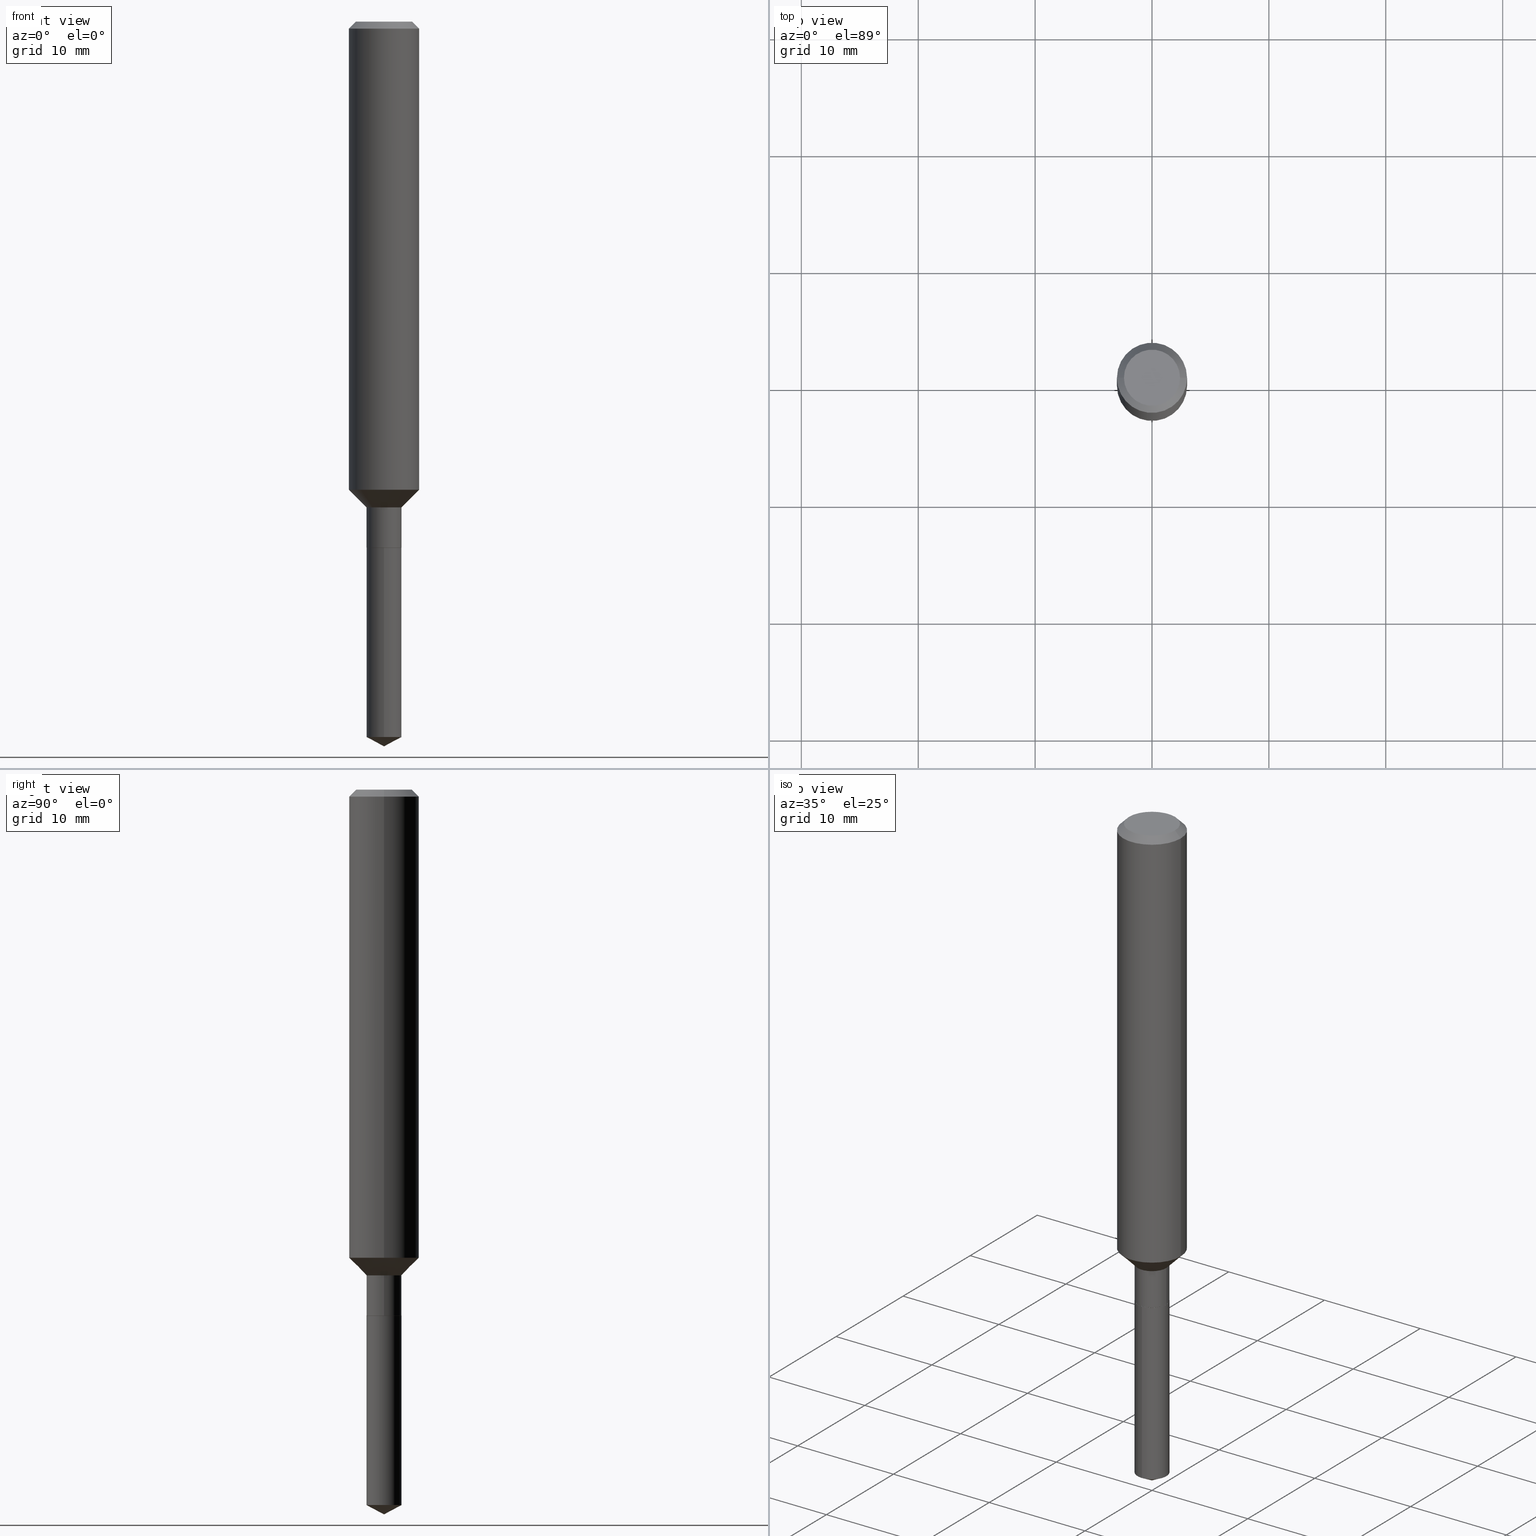
[diagram: canonical four-view strip — front | top / right | iso, engineering-drawing reading convention]
A machine part, canonical four-view strip (front | top / right | iso — engineering-drawing reading convention). The complete STEP part file that produces these views, byte-faithful:
ISO-10303-21;
HEADER;
FILE_DESCRIPTION (( 'STEP AP203' ),
    '1' );
FILE_NAME ('64600.STEP',
    '2024-04-24T18:22:38',
    ( '' ),
    ( '' ),
    'SwSTEP 2.0',
    'SolidWorks 2023',
    '' );
FILE_SCHEMA (( 'CONFIG_CONTROL_DESIGN' ));
ENDSEC;

DATA;
#1 = DIRECTION ( 'NONE',  ( -2.445468806185136597E-29, 3.491481338843145583E-15, 1.000000000000000000 ) ) ;
#2 = DATE_AND_TIME ( #280, #351 ) ;
#3 = DIRECTION ( 'NONE',  ( -2.410626900522587161E-29, 3.541376930830032473E-15, 1.000000000000000000 ) ) ;
#4 = AXIS2_PLACEMENT_3D ( 'NONE', #229, #161, #310 ) ;
#5 = VERTEX_POINT ( 'NONE', #363 ) ;
#6 = CARTESIAN_POINT ( 'NONE',  ( 6.008633568543982876E-29, -8.467356888935088427E-15, -2.440899999999999626 ) ) ;
#7 = DIRECTION ( 'NONE',  ( -6.982962677686265922E-15, -1.000000000000000000, 4.626330217890367758E-15 ) ) ;
#8 = CONICAL_SURFACE ( 'NONE', #75, 0.05854999999999998400, 0.7853981633973801113 ) ;
#9 = CONICAL_SURFACE ( 'NONE', #426, 0.05904999999999981097, 0.7853981633974491672 ) ;
#10 = EDGE_CURVE ( 'NONE', #445, #430, #357, .T. ) ;
#11 = ORIENTED_EDGE ( 'NONE', *, *, #338, .F. ) ;
#12 = CC_DESIGN_PERSON_AND_ORGANIZATION_ASSIGNMENT ( #291, #288, ( #19 ) ) ;
#13 = DIRECTION ( 'NONE',  ( -2.445468806185136597E-29, 3.491481338843145583E-15, 1.000000000000000000 ) ) ;
#14 = ORIENTED_EDGE ( 'NONE', *, *, #278, .T. ) ;
#15 = LINE ( 'NONE', #200, #264 ) ;
#16 =( CONVERSION_BASED_UNIT ( 'INCH', #393 ) LENGTH_UNIT ( ) NAMED_UNIT ( #344 ) );
#17 = VECTOR ( 'NONE', #374, 39.37007874015748143 ) ;
#18 = MANIFOLD_SOLID_BREP ( 'Body-Move/Copy2[2]', #454 ) ;
#19 = PRODUCT_DEFINITION_FORMATION_WITH_SPECIFIED_SOURCE ( 'ANY', '', #129, .NOT_KNOWN. ) ;
#20 = CARTESIAN_POINT ( 'NONE',  ( 4.332392537037588763E-29, -6.185508339894517569E-15, -1.771600000000000286 ) ) ;
#21 = EDGE_CURVE ( 'NONE', #154, #414, #480, .T. ) ;
#22 = ORIENTED_EDGE ( 'NONE', *, *, #146, .F. ) ;
#23 = APPLICATION_PROTOCOL_DEFINITION ( 'international standard', 'config_control_design', 1994, #47 ) ;
#24 = ORIENTED_EDGE ( 'NONE', *, *, #222, .T. ) ;
#25 = MANIFOLD_SOLID_BREP ( 'Body-Move/Copy2[1]', #93 ) ;
#26 = DIRECTION ( 'NONE',  ( -2.410626900522587161E-29, 3.541376930830032473E-15, 1.000000000000000000 ) ) ;
#27 = CYLINDRICAL_SURFACE ( 'NONE', #323, 0.05905000000000003302 ) ;
#28 = CIRCLE ( 'NONE', #290, 0.05905000000000001914 ) ;
#29 = DIRECTION ( 'NONE',  ( 2.438088387897960049E-29, -3.491481338843145188E-15, -1.000000000000000000 ) ) ;
#30 = ORIENTED_EDGE ( 'NONE', *, *, #136, .F. ) ;
#31 = APPROVAL ( #126, 'UNSPECIFIED' ) ;
#32 = DIRECTION ( 'NONE',  ( 1.000000000000000000, -6.982962677686267499E-15, 4.875432709231658792E-29 ) ) ;
#33 = ORIENTED_EDGE ( 'NONE', *, *, #195, .F. ) ;
#34 = CARTESIAN_POINT ( 'NONE',  ( 0.000000000000000000, 0.000000000000000000, 0.000000000000000000 ) ) ;
#35 = CARTESIAN_POINT ( 'NONE',  ( 4.331169802634495962E-29, -6.183762599225096855E-15, -1.771100000000000341 ) ) ;
#36 = CYLINDRICAL_SURFACE ( 'NONE', #131, 0.05904999999999981097 ) ;
#37 = VECTOR ( 'NONE', #157, 39.37007874015748143 ) ;
#38 = CC_DESIGN_APPROVAL ( #31, ( #113 ) ) ;
#39 = APPROVAL ( #286, 'UNSPECIFIED' ) ;
#40 = ORIENTED_EDGE ( 'NONE', *, *, #181, .F. ) ;
#41 = CARTESIAN_POINT ( 'NONE',  ( -8.896074576515866659E-28, 1.308685366956565604E-13, 36.92917874015748225 ) ) ;
#42 = LINE ( 'NONE', #244, #60 ) ;
#43 = APPROVAL_ROLE ( '' ) ;
#44 = EDGE_LOOP ( 'NONE', ( #201, #182, #63, #192 ) ) ;
#45 = AXIS2_PLACEMENT_3D ( 'NONE', #68, #299, #458 ) ;
#46 = CONICAL_SURFACE ( 'NONE', #110, 0.1180999999999999966, 0.7853981633974461696 ) ;
#47 = APPLICATION_CONTEXT ( 'configuration controlled 3d designs of mechanical parts and assemblies' ) ;
#48 = CARTESIAN_POINT ( 'NONE',  ( -0.05904999999999981097, 4.195754854663378166E-16, -2.904631170795512433E-30 ) ) ;
#49 = ADVANCED_FACE ( 'NONE', ( #285 ), #140, .F. ) ;
#50 = PRODUCT_DEFINITION_SHAPE ( 'NONE', 'NONE',  #113 ) ;
#51 = DIRECTION ( 'NONE',  ( -6.982962677686265133E-15, -1.000000000000000000, 4.626330217890365392E-15 ) ) ;
#52 = AXIS2_PLACEMENT_3D ( 'NONE', #226, #300, #120 ) ;
#53 = VERTEX_POINT ( 'NONE', #366 ) ;
#54 = DIRECTION ( 'NONE',  ( 1.000000000000000000, -6.982962677686261977E-15, 0.000000000000000000 ) ) ;
#55 = EDGE_LOOP ( 'NONE', ( #269, #167, #279, #111 ) ) ;
#56 = CARTESIAN_POINT ( 'NONE',  ( 0.05854999999999998400, -6.594360804673047905E-15, -1.771600000000000286 ) ) ;
#57 = DIRECTION ( 'NONE',  ( 1.000000000000000000, 0.000000000000000000, 0.000000000000000000 ) ) ;
#58 = DIRECTION ( 'NONE',  ( -6.982962677686265922E-15, -1.000000000000000000, 3.541896320645589268E-15 ) ) ;
#59 = CC_DESIGN_PERSON_AND_ORGANIZATION_ASSIGNMENT ( #411, #71, ( #247 ) ) ;
#60 = VECTOR ( 'NONE', #134, 39.37007874015748143 ) ;
#61 =( NAMED_UNIT ( * ) SI_UNIT ( $, .STERADIAN. ) SOLID_ANGLE_UNIT ( ) );
#62 = MECHANICAL_CONTEXT ( 'NONE', #47, 'mechanical' ) ;
#63 = ORIENTED_EDGE ( 'NONE', *, *, #338, .T. ) ;
#64 = CC_DESIGN_DATE_AND_TIME_ASSIGNMENT ( #242, #328, ( #113 ) ) ;
#65 = EDGE_LOOP ( 'NONE', ( #94, #303, #463, #88 ) ) ;
#66 = CARTESIAN_POINT ( 'NONE',  ( 0.000000000000000000, 0.000000000000000000, 0.000000000000000000 ) ) ;
#67 = DIRECTION ( 'NONE',  ( -2.445468806185136877E-29, 3.491481338843145188E-15, 1.000000000000000000 ) ) ;
#68 = CARTESIAN_POINT ( 'NONE',  ( 5.870137603410133772E-29, -8.444561743127043625E-15, -2.409502558060389266 ) ) ;
#69 = DATE_TIME_ROLE ( 'classification_date' ) ;
#70 = VERTEX_POINT ( 'NONE', #135 ) ;
#71 = PERSON_AND_ORGANIZATION_ROLE ( 'classification_officer' ) ;
#72 = CARTESIAN_POINT ( 'NONE',  ( 4.332392537037588763E-29, -6.185508339894517569E-15, -1.771600000000000286 ) ) ;
#73 = EDGE_LOOP ( 'NONE', ( #311, #329, #334, #315 ) ) ;
#74 = CARTESIAN_POINT ( 'NONE',  ( 4.332392537037588763E-29, -6.185508339894517569E-15, -1.771600000000000286 ) ) ;
#75 = AXIS2_PLACEMENT_3D ( 'NONE', #20, #272, #395 ) ;
#76 = CIRCLE ( 'NONE', #394, 0.1180999999999999966 ) ;
#77 = DATE_AND_TIME ( #368, #102 ) ;
#78 = EDGE_LOOP ( 'NONE', ( #321, #473, #252, #22 ) ) ;
#79 = AXIS2_PLACEMENT_3D ( 'NONE', #397, #26, #58 ) ;
#80 = PLANE ( 'NONE',  #158 ) ;
#81 = FACE_OUTER_BOUND ( 'NONE', #121, .T. ) ;
#82 = ADVANCED_FACE ( 'NONE', ( #399 ), #27, .T. ) ;
#83 = EDGE_LOOP ( 'NONE', ( #104, #142, #428, #153 ) ) ;
#84 = DIRECTION ( 'NONE',  ( 1.000000000000000000, -6.982962677686261977E-15, 0.000000000000000000 ) ) ;
#85 = LOCAL_TIME ( 14, 22, 38.00000000000000000, #137 ) ;
#86 = DIRECTION ( 'NONE',  ( 1.000000000000000000, -6.982962677686261977E-15, 0.000000000000000000 ) ) ;
#87 = PERSON_AND_ORGANIZATION_ROLE ( 'design_owner' ) ;
#88 = ORIENTED_EDGE ( 'NONE', *, *, #432, .F. ) ;
#89 = DIRECTION ( 'NONE',  ( -2.445468806185136597E-29, 3.491481338843145583E-15, 1.000000000000000000 ) ) ;
#90 = COORDINATED_UNIVERSAL_TIME_OFFSET ( 5, 0, .BEHIND. ) ;
#91 = CARTESIAN_POINT ( 'NONE',  ( 3.855892940152412927E-29, -5.505193201020928046E-15, -1.576749999999999430 ) ) ;
#92 = ORIENTED_EDGE ( 'NONE', *, *, #370, .F. ) ;
#93 = CLOSED_SHELL ( 'NONE', ( #82, #163, #402, #193, #49 ) ) ;
#94 = ORIENTED_EDGE ( 'NONE', *, *, #195, .T. ) ;
#95 = CC_DESIGN_SECURITY_CLASSIFICATION ( #247, ( #19 ) ) ;
#96 = DIRECTION ( 'NONE',  ( -2.445468806185136597E-29, 3.491481338843145583E-15, 1.000000000000000000 ) ) ;
#97 = DIRECTION ( 'NONE',  ( -0.7071067811865481278, 7.493145998870357316E-15, 0.7071067811865469066 ) ) ;
#98 = CARTESIAN_POINT ( 'NONE',  ( 4.195754854663826338E-16, 0.05904999999999384352, -1.771600000000000508 ) ) ;
#99 = DIRECTION ( 'NONE',  ( -2.445468806185136597E-29, 3.491481338843145583E-15, 1.000000000000000000 ) ) ;
#100 = DIRECTION ( 'NONE',  ( -2.445468806185136597E-29, 3.491481338843145583E-15, 1.000000000000000000 ) ) ;
#101 = VECTOR ( 'NONE', #380, 39.37007874015748143 ) ;
#102 = LOCAL_TIME ( 14, 22, 38.00000000000000000, #446 ) ;
#103 = CARTESIAN_POINT ( 'NONE',  ( 4.000297873157646549E-29, -5.711365174079616690E-15, -1.635799999999999699 ) ) ;
#104 = ORIENTED_EDGE ( 'NONE', *, *, #444, .T. ) ;
#105 = ADVANCED_FACE ( 'NONE', ( #132 ), #276, .T. ) ;
#106 = ORIENTED_EDGE ( 'NONE', *, *, #432, .T. ) ;
#107 = DIRECTION ( 'NONE',  ( -0.7071067811864992780, 7.493145998870180611E-15, 0.7071067811865957564 ) ) ;
#108 = EDGE_CURVE ( 'NONE', #70, #150, #457, .T. ) ;
#109 = ADVANCED_BREP_SHAPE_REPRESENTATION ( '64600', ( #25, #18, #117 ), #257 ) ;
#110 = AXIS2_PLACEMENT_3D ( 'NONE', #355, #240, #191 ) ;
#111 = ORIENTED_EDGE ( 'NONE', *, *, #316, .F. ) ;
#112 = DIRECTION ( 'NONE',  ( -2.445468806185136877E-29, 3.491481338843145188E-15, 1.000000000000000000 ) ) ;
#113 = PRODUCT_DEFINITION ( 'UNKNOWN', '', #19, #292 ) ;
#114 = DIRECTION ( 'NONE',  ( -2.445468806185136597E-29, 3.491481338843145583E-15, 1.000000000000000000 ) ) ;
#115 = LINE ( 'NONE', #6, #245 ) ;
#116 = LINE ( 'NONE', #302, #101 ) ;
#117 = AXIS2_PLACEMENT_3D ( 'NONE', #386, #354, #57 ) ;
#118 = EDGE_CURVE ( 'NONE', #233, #439, #116, .T. ) ;
#119 = CARTESIAN_POINT ( 'NONE',  ( -4.123439461173309412E-16, -0.05905000000000622251, -1.771600000000000064 ) ) ;
#120 = DIRECTION ( 'NONE',  ( -1.000000000000000000, 6.982962677686266711E-15, 0.000000000000000000 ) ) ;
#121 = EDGE_LOOP ( 'NONE', ( #170, #260, #24, #235 ) ) ;
#122 = ADVANCED_FACE ( 'NONE', ( #421 ), #295, .T. ) ;
#123 = CARTESIAN_POINT ( 'NONE',  ( 5.776197320209327532E-31, -8.246878922347559293E-17, -0.02362000000000014088 ) ) ;
#124 = CC_DESIGN_APPROVAL ( #39, ( #19 ) ) ;
#125 = CARTESIAN_POINT ( 'NONE',  ( 0.1181000000000002048, -6.329881093255677887E-15, -1.576749999999999430 ) ) ;
#126 = APPROVAL_STATUS ( 'not_yet_approved' ) ;
#127 = EDGE_CURVE ( 'NONE', #70, #53, #398, .T. ) ;
#128 = ORIENTED_EDGE ( 'NONE', *, *, #227, .F. ) ;
#129 = PRODUCT ( '64600', '64600', '', ( #62 ) ) ;
#130 = ORIENTED_EDGE ( 'NONE', *, *, #316, .T. ) ;
#131 = AXIS2_PLACEMENT_3D ( 'NONE', #34, #1, #173 ) ;
#132 = FACE_OUTER_BOUND ( 'NONE', #73, .T. ) ;
#133 = FACE_OUTER_BOUND ( 'NONE', #282, .T. ) ;
#134 = DIRECTION ( 'NONE',  ( -2.445468806185136877E-29, 3.491481338843145188E-15, 1.000000000000000000 ) ) ;
#135 = CARTESIAN_POINT ( 'NONE',  ( 4.195754854663983124E-16, 0.05904999999999161614, -2.409502558060389710 ) ) ;
#136 = EDGE_CURVE ( 'NONE', #414, #384, #433, .T. ) ;
#137 = COORDINATED_UNIVERSAL_TIME_OFFSET ( 5, 0, .BEHIND. ) ;
#138 = ORIENTED_EDGE ( 'NONE', *, *, #127, .F. ) ;
#139 = DIRECTION ( 'NONE',  ( -6.982962677686265922E-15, -1.000000000000000000, 3.541896320645589268E-15 ) ) ;
#140 = PLANE ( 'NONE',  #306 ) ;
#141 = CYLINDRICAL_SURFACE ( 'NONE', #189, 0.05905000000000003302 ) ;
#142 = ORIENTED_EDGE ( 'NONE', *, *, #21, .T. ) ;
#143 = DATE_AND_TIME ( #214, #301 ) ;
#144 = PLANE ( 'NONE',  #313 ) ;
#145 = CARTESIAN_POINT ( 'NONE',  ( 0.05904999999999981097, -6.123709120196989243E-15, -1.635799999999999699 ) ) ;
#146 = EDGE_CURVE ( 'NONE', #414, #439, #213, .T. ) ;
#147 = ADVANCED_FACE ( 'NONE', ( #350 ), #8, .T. ) ;
#148 = VECTOR ( 'NONE', #185, 39.37007874015748854 ) ;
#149 = LINE ( 'NONE', #333, #17 ) ;
#150 = VERTEX_POINT ( 'NONE', #198 ) ;
#151 = CARTESIAN_POINT ( 'NONE',  ( 4.332392537037588763E-29, -6.185508339894517569E-15, -1.771600000000000286 ) ) ;
#152 = AXIS2_PLACEMENT_3D ( 'NONE', #438, #99, #243 ) ;
#153 = ORIENTED_EDGE ( 'NONE', *, *, #118, .F. ) ;
#154 = VERTEX_POINT ( 'NONE', #447 ) ;
#155 = CARTESIAN_POINT ( 'NONE',  ( -0.05904999999999981097, -5.527988401186018857E-15, -1.771100000000000341 ) ) ;
#156 = PERSON_AND_ORGANIZATION ( #471, #459 ) ;
#157 = DIRECTION ( 'NONE',  ( -2.445468806185136877E-29, 3.491481338843145188E-15, 1.000000000000000000 ) ) ;
#158 = AXIS2_PLACEMENT_3D ( 'NONE', #151, #420, #461 ) ;
#159 = EDGE_LOOP ( 'NONE', ( #448, #456 ) ) ;
#160 = DIRECTION ( 'NONE',  ( 1.000000000000000000, -6.982962677686267499E-15, 4.875432709231658792E-29 ) ) ;
#161 = DIRECTION ( 'NONE',  ( -2.445468806185136597E-29, 3.491481338843145583E-15, 1.000000000000000000 ) ) ;
#162 = ADVANCED_FACE ( 'NONE', ( #441 ), #348, .T. ) ;
#163 = ADVANCED_FACE ( 'NONE', ( #250 ), #466, .T. ) ;
#164 = ORIENTED_EDGE ( 'NONE', *, *, #476, .T. ) ;
#165 = CARTESIAN_POINT ( 'NONE',  ( 6.603013411620882309E-46, -9.427353171913646324E-32, -2.700101262760083747E-17 ) ) ;
#166 = AXIS2_PLACEMENT_3D ( 'NONE', #179, #114, #265 ) ;
#167 = ORIENTED_EDGE ( 'NONE', *, *, #127, .T. ) ;
#168 = CONICAL_SURFACE ( 'NONE', #79, 74.04434902938294272, 1.082104136236483161 ) ;
#169 = DIRECTION ( 'NONE',  ( -1.000000000000000000, 6.982962677686265922E-15, -4.876176775795935793E-29 ) ) ;
#170 = ORIENTED_EDGE ( 'NONE', *, *, #349, .F. ) ;
#171 = CARTESIAN_POINT ( 'NONE',  ( 4.332392537037588763E-29, -6.185508339894517569E-15, -1.771600000000000286 ) ) ;
#172 = ORIENTED_EDGE ( 'NONE', *, *, #232, .T. ) ;
#173 = DIRECTION ( 'NONE',  ( 1.000000000000000000, -6.982962677686265922E-15, 4.876176775795936353E-29 ) ) ;
#174 = ADVANCED_FACE ( 'NONE', ( #208 ), #36, .T. ) ;
#175 = DIRECTION ( 'NONE',  ( 1.000000000000000000, -6.982962677686261977E-15, 0.000000000000000000 ) ) ;
#176 = CARTESIAN_POINT ( 'NONE',  ( 0.05904999999999981097, -6.596106545342469408E-15, -1.771100000000000341 ) ) ;
#177 = EDGE_LOOP ( 'NONE', ( #274, #14, #412 ) ) ;
#178 = COORDINATED_UNIVERSAL_TIME_OFFSET ( 5, 0, .BEHIND. ) ;
#179 = CARTESIAN_POINT ( 'NONE',  ( 5.776197320209327532E-31, -8.246878922347559293E-17, -0.02362000000000014088 ) ) ;
#180 = DIRECTION ( 'NONE',  ( 1.000000000000000000, -6.982962677686261977E-15, 0.000000000000000000 ) ) ;
#181 = EDGE_CURVE ( 'NONE', #154, #233, #339, .T. ) ;
#182 = ORIENTED_EDGE ( 'NONE', *, *, #349, .T. ) ;
#183 = CARTESIAN_POINT ( 'NONE',  ( 5.884099201485582383E-29, -8.644146950463024681E-15, -2.440899999999999626 ) ) ;
#184 = CIRCLE ( 'NONE', #268, 0.09447999999999998066 ) ;
#185 = DIRECTION ( 'NONE',  ( -6.165590087286821041E-15, -0.8829475928589246569, 0.4694715627858948581 ) ) ;
#186 = EDGE_CURVE ( 'NONE', #345, #430, #319, .T. ) ;
#187 = CARTESIAN_POINT ( 'NONE',  ( 4.000297873157646549E-29, -5.711365174079616690E-15, -1.635799999999999699 ) ) ;
#188 = FACE_OUTER_BOUND ( 'NONE', #83, .T. ) ;
#189 = AXIS2_PLACEMENT_3D ( 'NONE', #72, #216, #487 ) ;
#190 = DIRECTION ( 'NONE',  ( -2.445468806185136597E-29, 3.491481338843145583E-15, 1.000000000000000000 ) ) ;
#191 = DIRECTION ( 'NONE',  ( -1.000000000000000000, 6.982962677686266711E-15, 0.000000000000000000 ) ) ;
#192 = ORIENTED_EDGE ( 'NONE', *, *, #222, .F. ) ;
#193 = ADVANCED_FACE ( 'NONE', ( #202 ), #141, .T. ) ;
#194 = CARTESIAN_POINT ( 'NONE',  ( 0.1180999999999999966, -9.071566814582237199E-16, -0.02362000000000014088 ) ) ;
#195 = EDGE_CURVE ( 'NONE', #396, #345, #255, .T. ) ;
#196 = FACE_OUTER_BOUND ( 'NONE', #78, .T. ) ;
#197 = CC_DESIGN_APPROVAL ( #427, ( #247 ) ) ;
#198 = CARTESIAN_POINT ( 'NONE',  ( -4.123439461173157063E-16, -0.05905000000000850541, -2.409502558060388822 ) ) ;
#199 = ADVANCED_FACE ( 'NONE', ( #211 ), #144, .F. ) ;
#200 = CARTESIAN_POINT ( 'NONE',  ( 0.1180999999999999966, -8.926936027602933910E-16, -0.02362000000000014088 ) ) ;
#201 = ORIENTED_EDGE ( 'NONE', *, *, #472, .F. ) ;
#202 = FACE_OUTER_BOUND ( 'NONE', #342, .T. ) ;
#203 = AXIS2_PLACEMENT_3D ( 'NONE', #91, #237, #390 ) ;
#204 = ORIENTED_EDGE ( 'NONE', *, *, #337, .T. ) ;
#205 = APPROVAL_PERSON_ORGANIZATION ( #256, #39, #490 ) ;
#206 = ORIENTED_EDGE ( 'NONE', *, *, #217, .T. ) ;
#207 = ADVANCED_FACE ( 'NONE', ( #133 ), #277, .T. ) ;
#208 = FACE_OUTER_BOUND ( 'NONE', #488, .T. ) ;
#209 = ORIENTED_EDGE ( 'NONE', *, *, #270, .F. ) ;
#210 = SHAPE_DEFINITION_REPRESENTATION ( #50, #109 ) ;
#211 = FACE_OUTER_BOUND ( 'NONE', #159, .T. ) ;
#212 = DIRECTION ( 'NONE',  ( 6.982962677686265922E-15, 1.000000000000000000, -3.541376930830032473E-15 ) ) ;
#213 = CIRCLE ( 'NONE', #203, 0.1181000000000002048 ) ;
#214 = CALENDAR_DATE ( 2024, 24, 4 ) ;
#215 = CIRCLE ( 'NONE', #225, 0.05905000000000005383 ) ;
#216 = DIRECTION ( 'NONE',  ( -2.410626900522587161E-29, 3.541376930830032473E-15, 1.000000000000000000 ) ) ;
#217 = EDGE_CURVE ( 'NONE', #261, #70, #115, .T. ) ;
#218 = PERSON_AND_ORGANIZATION ( #471, #459 ) ;
#219 = DIRECTION ( 'NONE',  ( 6.273719981627754244E-15, 0.8829475928589278766, 0.4694715627858886409 ) ) ;
#220 = APPROVAL_STATUS ( 'not_yet_approved' ) ;
#221 = ORIENTED_EDGE ( 'NONE', *, *, #453, .T. ) ;
#222 = EDGE_CURVE ( 'NONE', #249, #384, #149, .T. ) ;
#223 = DIRECTION ( 'NONE',  ( -2.445468806185136597E-29, 3.491481338843145583E-15, 1.000000000000000000 ) ) ;
#224 = AXIS2_PLACEMENT_3D ( 'NONE', #481, #408, #367 ) ;
#225 = AXIS2_PLACEMENT_3D ( 'NONE', #262, #415, #51 ) ;
#226 = CARTESIAN_POINT ( 'NONE',  ( 5.776197320209327532E-31, -8.246878922347559293E-17, -0.02362000000000014088 ) ) ;
#227 = EDGE_CURVE ( 'NONE', #384, #377, #416, .T. ) ;
#228 = DIRECTION ( 'NONE',  ( -2.410626900522587161E-29, 3.541376930830032473E-15, 1.000000000000000000 ) ) ;
#229 = CARTESIAN_POINT ( 'NONE',  ( 4.332392537037588763E-29, -6.185508339894517569E-15, -1.771600000000000286 ) ) ;
#230 = AXIS2_PLACEMENT_3D ( 'NONE', #66, #223, #336 ) ;
#231 = AXIS2_PLACEMENT_3D ( 'NONE', #171, #320, #451 ) ;
#232 = EDGE_CURVE ( 'NONE', #53, #404, #28, .T. ) ;
#233 = VERTEX_POINT ( 'NONE', #145 ) ;
#234 = DIRECTION ( 'NONE',  ( -2.445468806185136597E-29, 3.491481338843145583E-15, 1.000000000000000000 ) ) ;
#235 = ORIENTED_EDGE ( 'NONE', *, *, #227, .T. ) ;
#236 = CARTESIAN_POINT ( 'NONE',  ( -0.05854999999999998400, -5.766836340932867774E-15, -1.771600000000000286 ) ) ;
#237 = DIRECTION ( 'NONE',  ( -2.445468806185136597E-29, 3.491481338843145583E-15, 1.000000000000000000 ) ) ;
#238 = VECTOR ( 'NONE', #347, 39.37007874015748143 ) ;
#239 = APPROVAL_PERSON_ORGANIZATION ( #475, #31, #429 ) ;
#240 = DIRECTION ( 'NONE',  ( 2.445468806185136597E-29, -3.491481338843145583E-15, -1.000000000000000000 ) ) ;
#241 = CARTESIAN_POINT ( 'NONE',  ( 4.332392537037588763E-29, -6.185508339894517569E-15, -1.771600000000000286 ) ) ;
#242 = DATE_AND_TIME ( #251, #85 ) ;
#243 = DIRECTION ( 'NONE',  ( 1.000000000000000000, -6.982962677686265922E-15, 4.876176775795936353E-29 ) ) ;
#244 = CARTESIAN_POINT ( 'NONE',  ( 0.1181000000000001077, -8.246878922347488542E-16, 5.758764772215005345E-30 ) ) ;
#245 = VECTOR ( 'NONE', #219, 39.37007874015748854 ) ;
#246 = DIRECTION ( 'NONE',  ( -2.410626900522587161E-29, 3.541376930830032473E-15, 1.000000000000000000 ) ) ;
#247 = SECURITY_CLASSIFICATION ( '', '', #410 ) ;
#248 = PERSON_AND_ORGANIZATION ( #471, #459 ) ;
#249 = VERTEX_POINT ( 'NONE', #413 ) ;
#250 = FACE_OUTER_BOUND ( 'NONE', #400, .T. ) ;
#251 = CALENDAR_DATE ( 2024, 24, 4 ) ;
#252 = ORIENTED_EDGE ( 'NONE', *, *, #118, .T. ) ;
#253 = CC_DESIGN_PERSON_AND_ORGANIZATION_ASSIGNMENT ( #284, #479, ( #113 ) ) ;
#254 = APPROVAL_DATE_TIME ( #379, #31 ) ;
#255 = CIRCLE ( 'NONE', #224, 0.05854999999999998400 ) ;
#256 = PERSON_AND_ORGANIZATION ( #471, #459 ) ;
#257 =( GEOMETRIC_REPRESENTATION_CONTEXT ( 3 ) GLOBAL_UNCERTAINTY_ASSIGNED_CONTEXT ( ( #331 ) ) GLOBAL_UNIT_ASSIGNED_CONTEXT ( ( #16, #435, #61 ) ) REPRESENTATION_CONTEXT ( 'NONE', 'WORKASPACE' ) );
#258 = DIRECTION ( 'NONE',  ( -2.445468806185136597E-29, 3.491481338843145583E-15, 1.000000000000000000 ) ) ;
#259 = COORDINATED_UNIVERSAL_TIME_OFFSET ( 5, 0, .BEHIND. ) ;
#260 = ORIENTED_EDGE ( 'NONE', *, *, #405, .F. ) ;
#261 = VERTEX_POINT ( 'NONE', #293 ) ;
#262 = CARTESIAN_POINT ( 'NONE',  ( 5.870137603410133772E-29, -8.444561743127043625E-15, -2.409502558060389266 ) ) ;
#263 = CONICAL_SURFACE ( 'NONE', #365, 0.05904999999999981097, 0.7853981633974491672 ) ;
#264 = VECTOR ( 'NONE', #389, 39.37007874015748143 ) ;
#265 = DIRECTION ( 'NONE',  ( 1.000000000000000000, -6.982962677686266711E-15, 0.000000000000000000 ) ) ;
#266 = CARTESIAN_POINT ( 'NONE',  ( 4.000297873157646549E-29, -5.711365174079616690E-15, -1.635799999999999699 ) ) ;
#267 = AXIS2_PLACEMENT_3D ( 'NONE', #41, #401, #139 ) ;
#268 = AXIS2_PLACEMENT_3D ( 'NONE', #165, #234, #160 ) ;
#269 = ORIENTED_EDGE ( 'NONE', *, *, #275, .T. ) ;
#270 = EDGE_CURVE ( 'NONE', #430, #154, #419, .T. ) ;
#271 = ORIENTED_EDGE ( 'NONE', *, *, #375, .F. ) ;
#272 = DIRECTION ( 'NONE',  ( -2.445468806185136597E-29, 3.491481338843145583E-15, 1.000000000000000000 ) ) ;
#273 = CARTESIAN_POINT ( 'NONE',  ( -0.1180999999999999966, -1.954680024189521583E-15, -0.02362000000000014088 ) ) ;
#274 = ORIENTED_EDGE ( 'NONE', *, *, #217, .F. ) ;
#275 = EDGE_CURVE ( 'NONE', #150, #70, #215, .T. ) ;
#276 = CYLINDRICAL_SURFACE ( 'NONE', #152, 0.05904999999999981097 ) ;
#277 = CYLINDRICAL_SURFACE ( 'NONE', #230, 0.1181000000000001077 ) ;
#278 = EDGE_CURVE ( 'NONE', #261, #150, #378, .T. ) ;
#279 = ORIENTED_EDGE ( 'NONE', *, *, #476, .F. ) ;
#280 = CALENDAR_DATE ( 2024, 24, 4 ) ;
#281 =( LENGTH_UNIT ( ) NAMED_UNIT ( * ) SI_UNIT ( $, .METRE. ) );
#282 = EDGE_LOOP ( 'NONE', ( #204, #371, #11, #436 ) ) ;
#283 = CIRCLE ( 'NONE', #383, 0.05904999999999981097 ) ;
#284 = PERSON_AND_ORGANIZATION ( #471, #459 ) ;
#285 = FACE_OUTER_BOUND ( 'NONE', #318, .T. ) ;
#286 = APPROVAL_STATUS ( 'not_yet_approved' ) ;
#287 = DIRECTION ( 'NONE',  ( -2.445468806185136597E-29, 3.491481338843145583E-15, 1.000000000000000000 ) ) ;
#288 = PERSON_AND_ORGANIZATION_ROLE ( 'design_supplier' ) ;
#289 = CARTESIAN_POINT ( 'NONE',  ( -0.05854999999999998400, -5.769485568106978975E-15, -1.771600000000000286 ) ) ;
#290 = AXIS2_PLACEMENT_3D ( 'NONE', #296, #3, #7 ) ;
#291 = PERSON_AND_ORGANIZATION ( #471, #459 ) ;
#292 = DESIGN_CONTEXT ( 'detailed design', #330, 'design' ) ;
#293 = CARTESIAN_POINT ( 'NONE',  ( 5.884099201485582383E-29, -8.644146950463024681E-15, -2.440899999999999626 ) ) ;
#294 = CALENDAR_DATE ( 2024, 24, 4 ) ;
#295 = CYLINDRICAL_SURFACE ( 'NONE', #392, 0.1181000000000001077 ) ;
#296 = CARTESIAN_POINT ( 'NONE',  ( 4.332392537037588763E-29, -6.185508339894517569E-15, -1.771600000000000286 ) ) ;
#297 = ORIENTED_EDGE ( 'NONE', *, *, #146, .T. ) ;
#298 = FACE_OUTER_BOUND ( 'NONE', #356, .T. ) ;
#299 = DIRECTION ( 'NONE',  ( -2.410626900522587161E-29, 3.541376930830032473E-15, 1.000000000000000000 ) ) ;
#300 = DIRECTION ( 'NONE',  ( 2.445468806185136597E-29, -3.491481338843145583E-15, -1.000000000000000000 ) ) ;
#301 = LOCAL_TIME ( 14, 22, 38.00000000000000000, #259 ) ;
#302 = CARTESIAN_POINT ( 'NONE',  ( 0.05904999999999981097, -6.123709120196989243E-15, -1.635799999999999699 ) ) ;
#303 = ORIENTED_EDGE ( 'NONE', *, *, #186, .T. ) ;
#304 = CARTESIAN_POINT ( 'NONE',  ( -4.123439461173307933E-16, -0.05905000000000620863, -1.771600000000000064 ) ) ;
#305 = CARTESIAN_POINT ( 'NONE',  ( -0.1181000000000001077, 8.391509709326790846E-16, -5.809262341591049389E-30 ) ) ;
#306 = AXIS2_PLACEMENT_3D ( 'NONE', #241, #407, #212 ) ;
#307 = ADVANCED_FACE ( 'NONE', ( #298 ), #80, .F. ) ;
#308 = ORIENTED_EDGE ( 'NONE', *, *, #186, .F. ) ;
#309 = ADVANCED_FACE ( 'NONE', ( #81 ), #314, .T. ) ;
#310 = DIRECTION ( 'NONE',  ( 1.000000000000000000, -6.982962677686265922E-15, 0.000000000000000000 ) ) ;
#311 = ORIENTED_EDGE ( 'NONE', *, *, #10, .T. ) ;
#312 = CARTESIAN_POINT ( 'NONE',  ( -0.1181000000000002048, -4.666042230088248272E-15, -1.576749999999999430 ) ) ;
#313 = AXIS2_PLACEMENT_3D ( 'NONE', #452, #29, #169 ) ;
#314 = CONICAL_SURFACE ( 'NONE', #52, 0.1180999999999999966, 0.7853981633974461696 ) ;
#315 = ORIENTED_EDGE ( 'NONE', *, *, #465, .F. ) ;
#316 = EDGE_CURVE ( 'NONE', #150, #404, #460, .T. ) ;
#317 = ADVANCED_FACE ( 'NONE', ( #188 ), #9, .T. ) ;
#318 = EDGE_LOOP ( 'NONE', ( #164, #172 ) ) ;
#319 = LINE ( 'NONE', #289, #442 ) ;
#320 = DIRECTION ( 'NONE',  ( -2.410626900522587161E-29, 3.541376930830032473E-15, 1.000000000000000000 ) ) ;
#321 = ORIENTED_EDGE ( 'NONE', *, *, #21, .F. ) ;
#322 = DIRECTION ( 'NONE',  ( 1.000000000000000000, -6.982962677686265922E-15, 0.000000000000000000 ) ) ;
#323 = AXIS2_PLACEMENT_3D ( 'NONE', #361, #246, #403 ) ;
#324 = VECTOR ( 'NONE', #67, 39.37007874015748143 ) ;
#325 = ORIENTED_EDGE ( 'NONE', *, *, #108, .T. ) ;
#326 = DIRECTION ( 'NONE',  ( 1.000000000000000000, -6.982962677686261977E-15, 0.000000000000000000 ) ) ;
#327 = CARTESIAN_POINT ( 'NONE',  ( 0.05904999999999981097, -4.123439461173727015E-16, 2.879382386107491112E-30 ) ) ;
#328 = DATE_TIME_ROLE ( 'creation_date' ) ;
#329 = ORIENTED_EDGE ( 'NONE', *, *, #270, .T. ) ;
#330 = APPLICATION_CONTEXT ( 'configuration controlled 3d designs of mechanical parts and assemblies' ) ;
#331 = UNCERTAINTY_MEASURE_WITH_UNIT (LENGTH_MEASURE( 1.000000000000000082E-05 ), #16, 'distance_accuracy_value', 'NONE');
#332 = PERSON_AND_ORGANIZATION_ROLE ( 'creator' ) ;
#333 = CARTESIAN_POINT ( 'NONE',  ( -0.1180999999999999966, 7.422191030112725094E-16, -0.02362000000000014088 ) ) ;
#334 = ORIENTED_EDGE ( 'NONE', *, *, #444, .F. ) ;
#335 = LOCAL_TIME ( 14, 22, 38.00000000000000000, #90 ) ;
#336 = DIRECTION ( 'NONE',  ( 1.000000000000000000, -6.982962677686266711E-15, 4.876176775795935793E-29 ) ) ;
#337 = EDGE_CURVE ( 'NONE', #439, #414, #340, .T. ) ;
#338 = EDGE_CURVE ( 'NONE', #377, #384, #76, .T. ) ;
#339 = CIRCLE ( 'NONE', #381, 0.05904999999999981097 ) ;
#340 = CIRCLE ( 'NONE', #485, 0.1181000000000002048 ) ;
#341 = ADVANCED_FACE ( 'NONE', ( #196 ), #263, .T. ) ;
#342 = EDGE_LOOP ( 'NONE', ( #138, #325, #130, #387 ) ) ;
#343 = FACE_OUTER_BOUND ( 'NONE', #177, .T. ) ;
#344 = DIMENSIONAL_EXPONENTS ( 1.000000000000000000, 0.000000000000000000, 0.000000000000000000, 0.000000000000000000, 0.000000000000000000, 0.000000000000000000, 0.000000000000000000 ) ;
#345 = VERTEX_POINT ( 'NONE', #236 ) ;
#346 = CARTESIAN_POINT ( 'NONE',  ( 0.05854999999999998400, -6.594360804673047905E-15, -1.771600000000000286 ) ) ;
#347 = DIRECTION ( 'NONE',  ( -2.410626900522587161E-29, 3.541376930830032473E-15, 1.000000000000000000 ) ) ;
#348 = CONICAL_SURFACE ( 'NONE', #372, 0.05854999999999998400, 0.7853981633973801113 ) ;
#349 = EDGE_CURVE ( 'NONE', #5, #377, #15, .T. ) ;
#350 = FACE_OUTER_BOUND ( 'NONE', #359, .T. ) ;
#351 = LOCAL_TIME ( 14, 22, 38.00000000000000000, #178 ) ;
#352 = ORIENTED_EDGE ( 'NONE', *, *, #465, .T. ) ;
#353 = DIRECTION ( 'NONE',  ( 1.000000000000000000, -6.982962677686266711E-15, 0.000000000000000000 ) ) ;
#354 = DIRECTION ( 'NONE',  ( 0.000000000000000000, 0.000000000000000000, 1.000000000000000000 ) ) ;
#355 = CARTESIAN_POINT ( 'NONE',  ( 5.776197320209327532E-31, -8.246878922347559293E-17, -0.02362000000000014088 ) ) ;
#356 = EDGE_LOOP ( 'NONE', ( #33, #92 ) ) ;
#357 = CIRCLE ( 'NONE', #424, 0.05904999999999981097 ) ;
#358 = CIRCLE ( 'NONE', #468, 0.09447999999999998066 ) ;
#359 = EDGE_LOOP ( 'NONE', ( #308, #391, #106, #271 ) ) ;
#360 = CARTESIAN_POINT ( 'NONE',  ( 6.603013411620882309E-46, -9.427353171913646324E-32, -2.700101262760083747E-17 ) ) ;
#361 = CARTESIAN_POINT ( 'NONE',  ( 4.332392537037588763E-29, -6.185508339894517569E-15, -1.771600000000000286 ) ) ;
#362 = LINE ( 'NONE', #327, #324 ) ;
#363 = CARTESIAN_POINT ( 'NONE',  ( 0.09447999999999998066, -7.704367267948738690E-16, -2.700101262759583929E-17 ) ) ;
#364 = VECTOR ( 'NONE', #97, 39.37007874015748143 ) ;
#365 = AXIS2_PLACEMENT_3D ( 'NONE', #422, #13, #86 ) ;
#366 = CARTESIAN_POINT ( 'NONE',  ( 4.195754854663983124E-16, 0.05904999999999382965, -1.771600000000000508 ) ) ;
#367 = DIRECTION ( 'NONE',  ( 1.000000000000000000, -6.982962677686265922E-15, 0.000000000000000000 ) ) ;
#368 = CALENDAR_DATE ( 2024, 24, 4 ) ;
#369 = ADVANCED_FACE ( 'NONE', ( #425 ), #46, .T. ) ;
#370 = EDGE_CURVE ( 'NONE', #345, #396, #417, .T. ) ;
#371 = ORIENTED_EDGE ( 'NONE', *, *, #136, .T. ) ;
#372 = AXIS2_PLACEMENT_3D ( 'NONE', #74, #450, #322 ) ;
#373 = APPROVAL_PERSON_ORGANIZATION ( #248, #427, #43 ) ;
#374 = DIRECTION ( 'NONE',  ( -0.7071067811865460184, 2.468850131082241283E-15, -0.7071067811865490160 ) ) ;
#375 = EDGE_CURVE ( 'NONE', #430, #445, #283, .T. ) ;
#376 = CC_DESIGN_PERSON_AND_ORGANIZATION_ASSIGNMENT ( #156, #87, ( #129 ) ) ;
#377 = VERTEX_POINT ( 'NONE', #194 ) ;
#378 = LINE ( 'NONE', #183, #148 ) ;
#379 = DATE_AND_TIME ( #294, #335 ) ;
#380 = DIRECTION ( 'NONE',  ( 0.7071067811865481278, -2.468850131082263371E-15, 0.7071067811865469066 ) ) ;
#381 = AXIS2_PLACEMENT_3D ( 'NONE', #103, #406, #326 ) ;
#382 = CARTESIAN_POINT ( 'NONE',  ( 4.331169802634495962E-29, -6.183762599225096855E-15, -1.771100000000000341 ) ) ;
#383 = AXIS2_PLACEMENT_3D ( 'NONE', #382, #474, #54 ) ;
#384 = VERTEX_POINT ( 'NONE', #273 ) ;
#385 = LINE ( 'NONE', #56, #477 ) ;
#386 = CARTESIAN_POINT ( 'NONE',  ( 0.000000000000000000, 0.000000000000000000, 0.000000000000000000 ) ) ;
#387 = ORIENTED_EDGE ( 'NONE', *, *, #232, .F. ) ;
#388 = PRODUCT_RELATED_PRODUCT_CATEGORY ( 'detail', '', ( #129 ) ) ;
#389 = DIRECTION ( 'NONE',  ( 0.7071067811865460184, -7.319954787623251312E-15, -0.7071067811865490160 ) ) ;
#390 = DIRECTION ( 'NONE',  ( 1.000000000000000000, -6.982962677686268288E-15, 0.000000000000000000 ) ) ;
#391 = ORIENTED_EDGE ( 'NONE', *, *, #370, .T. ) ;
#392 = AXIS2_PLACEMENT_3D ( 'NONE', #462, #190, #437 ) ;
#393 = LENGTH_MEASURE_WITH_UNIT ( LENGTH_MEASURE( 0.02539999999999999897 ), #281 );
#394 = AXIS2_PLACEMENT_3D ( 'NONE', #123, #89, #353 ) ;
#395 = DIRECTION ( 'NONE',  ( 1.000000000000000000, -6.982962677686265922E-15, 0.000000000000000000 ) ) ;
#396 = VERTEX_POINT ( 'NONE', #346 ) ;
#397 = CARTESIAN_POINT ( 'NONE',  ( -8.896074576515866659E-28, 1.308685366956565604E-13, 36.92917874015748225 ) ) ;
#398 = LINE ( 'NONE', #98, #238 ) ;
#399 = FACE_OUTER_BOUND ( 'NONE', #55, .T. ) ;
#400 = EDGE_LOOP ( 'NONE', ( #423, #206, #434 ) ) ;
#401 = DIRECTION ( 'NONE',  ( -2.410626900522587161E-29, 3.541376930830032473E-15, 1.000000000000000000 ) ) ;
#402 = ADVANCED_FACE ( 'NONE', ( #343 ), #168, .T. ) ;
#403 = DIRECTION ( 'NONE',  ( -6.982962677686265922E-15, -1.000000000000000000, 4.626330217890366970E-15 ) ) ;
#404 = VERTEX_POINT ( 'NONE', #304 ) ;
#405 = EDGE_CURVE ( 'NONE', #249, #5, #184, .T. ) ;
#406 = DIRECTION ( 'NONE',  ( -2.445468806185136597E-29, 3.491481338843145583E-15, 1.000000000000000000 ) ) ;
#407 = DIRECTION ( 'NONE',  ( 2.410626900522586881E-29, -3.541376930830032473E-15, -1.000000000000000000 ) ) ;
#408 = DIRECTION ( 'NONE',  ( -2.445468806185136597E-29, 3.491481338843145583E-15, 1.000000000000000000 ) ) ;
#409 = AXIS2_PLACEMENT_3D ( 'NONE', #187, #258, #180 ) ;
#410 = SECURITY_CLASSIFICATION_LEVEL ( 'unclassified' ) ;
#411 = PERSON_AND_ORGANIZATION ( #471, #459 ) ;
#412 = ORIENTED_EDGE ( 'NONE', *, *, #108, .F. ) ;
#413 = CARTESIAN_POINT ( 'NONE',  ( -0.09447999999999998066, 7.009847083995354710E-16, -2.700101262760559836E-17 ) ) ;
#414 = VERTEX_POINT ( 'NONE', #312 ) ;
#415 = DIRECTION ( 'NONE',  ( -2.410626900522587161E-29, 3.541376930830032473E-15, 1.000000000000000000 ) ) ;
#416 = CIRCLE ( 'NONE', #166, 0.1180999999999999966 ) ;
#417 = CIRCLE ( 'NONE', #4, 0.05854999999999998400 ) ;
#418 = CC_DESIGN_PERSON_AND_ORGANIZATION_ASSIGNMENT ( #218, #332, ( #19 ) ) ;
#419 = LINE ( 'NONE', #48, #483 ) ;
#420 = DIRECTION ( 'NONE',  ( -2.438088387897960049E-29, 3.491481338843145188E-15, 1.000000000000000000 ) ) ;
#421 = FACE_OUTER_BOUND ( 'NONE', #482, .T. ) ;
#422 = CARTESIAN_POINT ( 'NONE',  ( 4.000297873157646549E-29, -5.711365174079616690E-15, -1.635799999999999699 ) ) ;
#423 = ORIENTED_EDGE ( 'NONE', *, *, #278, .F. ) ;
#424 = AXIS2_PLACEMENT_3D ( 'NONE', #35, #100, #175 ) ;
#425 = FACE_OUTER_BOUND ( 'NONE', #44, .T. ) ;
#426 = AXIS2_PLACEMENT_3D ( 'NONE', #266, #470, #84 ) ;
#427 = APPROVAL ( #220, 'UNSPECIFIED' ) ;
#428 = ORIENTED_EDGE ( 'NONE', *, *, #337, .F. ) ;
#429 = APPROVAL_ROLE ( '' ) ;
#430 = VERTEX_POINT ( 'NONE', #155 ) ;
#431 = CARTESIAN_POINT ( 'NONE',  ( 3.855892940152412927E-29, -5.505193201020928046E-15, -1.576749999999999430 ) ) ;
#432 = EDGE_CURVE ( 'NONE', #396, #445, #385, .T. ) ;
#433 = LINE ( 'NONE', #305, #37 ) ;
#434 = ORIENTED_EDGE ( 'NONE', *, *, #275, .F. ) ;
#435 =( NAMED_UNIT ( * ) PLANE_ANGLE_UNIT ( ) SI_UNIT ( $, .RADIAN. ) );
#436 = ORIENTED_EDGE ( 'NONE', *, *, #453, .F. ) ;
#437 = DIRECTION ( 'NONE',  ( 1.000000000000000000, -6.982962677686266711E-15, 4.876176775795935793E-29 ) ) ;
#438 = CARTESIAN_POINT ( 'NONE',  ( 0.000000000000000000, 0.000000000000000000, 0.000000000000000000 ) ) ;
#439 = VERTEX_POINT ( 'NONE', #125 ) ;
#440 = APPROVAL_DATE_TIME ( #2, #427 ) ;
#441 = FACE_OUTER_BOUND ( 'NONE', #65, .T. ) ;
#442 = VECTOR ( 'NONE', #107, 39.37007874015748143 ) ;
#443 = VECTOR ( 'NONE', #228, 39.37007874015748143 ) ;
#444 = EDGE_CURVE ( 'NONE', #233, #154, #455, .T. ) ;
#445 = VERTEX_POINT ( 'NONE', #176 ) ;
#446 = COORDINATED_UNIVERSAL_TIME_OFFSET ( 5, 0, .BEHIND. ) ;
#447 = CARTESIAN_POINT ( 'NONE',  ( -0.05904999999999981097, -5.527988401186018857E-15, -1.635799999999999699 ) ) ;
#448 = ORIENTED_EDGE ( 'NONE', *, *, #405, .T. ) ;
#449 = APPROVAL_DATE_TIME ( #143, #39 ) ;
#450 = DIRECTION ( 'NONE',  ( -2.445468806185136597E-29, 3.491481338843145583E-15, 1.000000000000000000 ) ) ;
#451 = DIRECTION ( 'NONE',  ( -6.982962677686265922E-15, -1.000000000000000000, 4.626330217890367758E-15 ) ) ;
#452 = CARTESIAN_POINT ( 'NONE',  ( 3.301506705810441154E-46, -4.713676585956823162E-32, -1.350050631380041873E-17 ) ) ;
#453 = EDGE_CURVE ( 'NONE', #439, #377, #42, .T. ) ;
#454 = CLOSED_SHELL ( 'NONE', ( #162, #369, #207, #317, #105, #174, #341, #122, #309, #199, #307, #147 ) ) ;
#455 = CIRCLE ( 'NONE', #409, 0.05904999999999981097 ) ;
#456 = ORIENTED_EDGE ( 'NONE', *, *, #472, .T. ) ;
#457 = CIRCLE ( 'NONE', #45, 0.05905000000000005383 ) ;
#458 = DIRECTION ( 'NONE',  ( -6.982962677686265133E-15, -1.000000000000000000, 4.626330217890365392E-15 ) ) ;
#459 = ORGANIZATION ( 'UNSPECIFIED', 'UNSPECIFIED', '' ) ;
#460 = LINE ( 'NONE', #119, #443 ) ;
#461 = DIRECTION ( 'NONE',  ( 1.000000000000000000, -6.982962677686265922E-15, 4.876176775795935793E-29 ) ) ;
#462 = CARTESIAN_POINT ( 'NONE',  ( 0.000000000000000000, 0.000000000000000000, 0.000000000000000000 ) ) ;
#463 = ORIENTED_EDGE ( 'NONE', *, *, #10, .F. ) ;
#464 = DIRECTION ( 'NONE',  ( 1.000000000000000000, -6.982962677686268288E-15, 0.000000000000000000 ) ) ;
#465 = EDGE_CURVE ( 'NONE', #445, #233, #362, .T. ) ;
#466 = CONICAL_SURFACE ( 'NONE', #267, 74.04434902938294272, 1.082104136236483161 ) ;
#467 = DIRECTION ( 'NONE',  ( 0.7071067811864992780, -2.468850131081751401E-15, 0.7071067811865957564 ) ) ;
#468 = AXIS2_PLACEMENT_3D ( 'NONE', #360, #287, #32 ) ;
#469 = APPLICATION_PROTOCOL_DEFINITION ( 'international standard', 'config_control_design', 1994, #330 ) ;
#470 = DIRECTION ( 'NONE',  ( -2.445468806185136597E-29, 3.491481338843145583E-15, 1.000000000000000000 ) ) ;
#471 = PERSON ( 'UNSPECIFIED', 'UNSPECIFIED', 'UNSPECIFIED', ('UNSPECIFIED'), ('UNSPECIFIED'), ('UNSPECIFIED') ) ;
#472 = EDGE_CURVE ( 'NONE', #5, #249, #358, .T. ) ;
#473 = ORIENTED_EDGE ( 'NONE', *, *, #181, .T. ) ;
#474 = DIRECTION ( 'NONE',  ( -2.445468806185136597E-29, 3.491481338843145583E-15, 1.000000000000000000 ) ) ;
#475 = PERSON_AND_ORGANIZATION ( #471, #459 ) ;
#476 = EDGE_CURVE ( 'NONE', #404, #53, #484, .T. ) ;
#477 = VECTOR ( 'NONE', #467, 39.37007874015748143 ) ;
#478 = ORIENTED_EDGE ( 'NONE', *, *, #375, .T. ) ;
#479 = PERSON_AND_ORGANIZATION_ROLE ( 'creator' ) ;
#480 = LINE ( 'NONE', #486, #364 ) ;
#481 = CARTESIAN_POINT ( 'NONE',  ( 4.332392537037588763E-29, -6.185508339894517569E-15, -1.771600000000000286 ) ) ;
#482 = EDGE_LOOP ( 'NONE', ( #30, #297, #221, #128 ) ) ;
#483 = VECTOR ( 'NONE', #112, 39.37007874015748143 ) ;
#484 = CIRCLE ( 'NONE', #231, 0.05905000000000001914 ) ;
#485 = AXIS2_PLACEMENT_3D ( 'NONE', #431, #96, #464 ) ;
#486 = CARTESIAN_POINT ( 'NONE',  ( -0.05904999999999981097, -5.291789688613278775E-15, -1.635799999999999699 ) ) ;
#487 = DIRECTION ( 'NONE',  ( -6.982962677686265922E-15, -1.000000000000000000, 4.626330217890366970E-15 ) ) ;
#488 = EDGE_LOOP ( 'NONE', ( #209, #478, #352, #40 ) ) ;
#489 = CC_DESIGN_DATE_AND_TIME_ASSIGNMENT ( #77, #69, ( #247 ) ) ;
#490 = APPROVAL_ROLE ( '' ) ;
ENDSEC;
END-ISO-10303-21;
